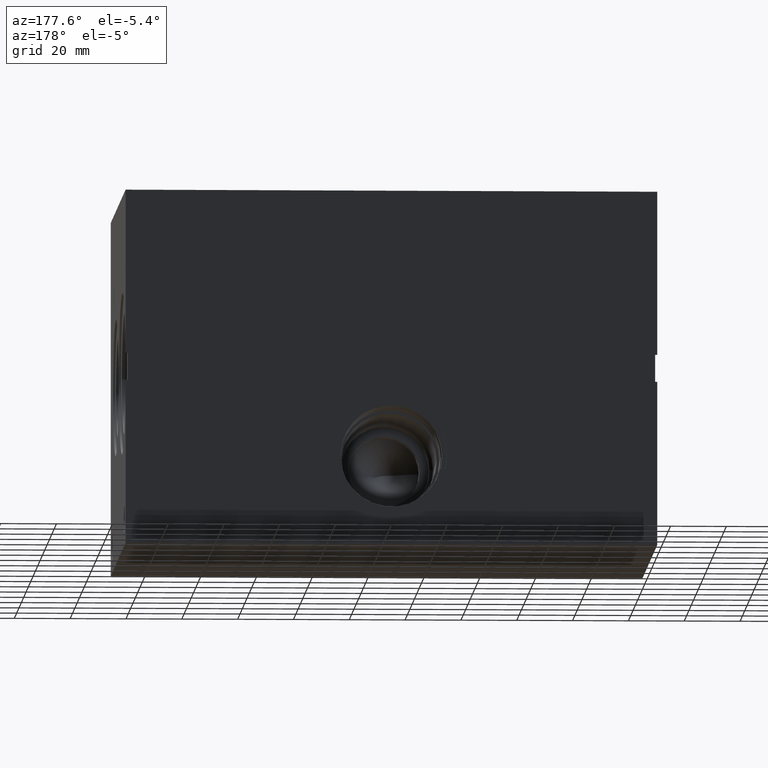
[diagram: clean part render]
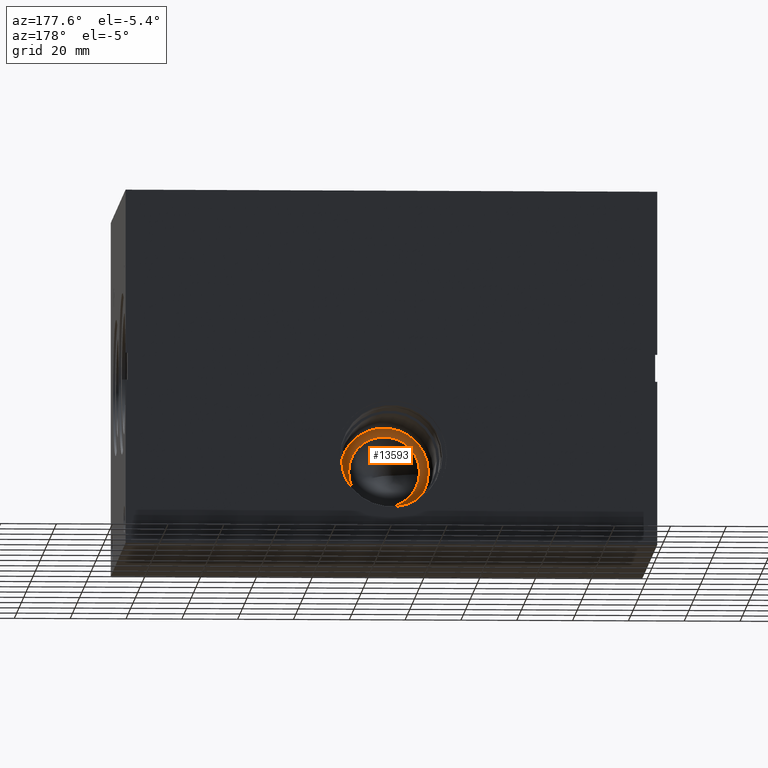
[diagram: same view with one face highlighted and labeled with its STEP entity id]
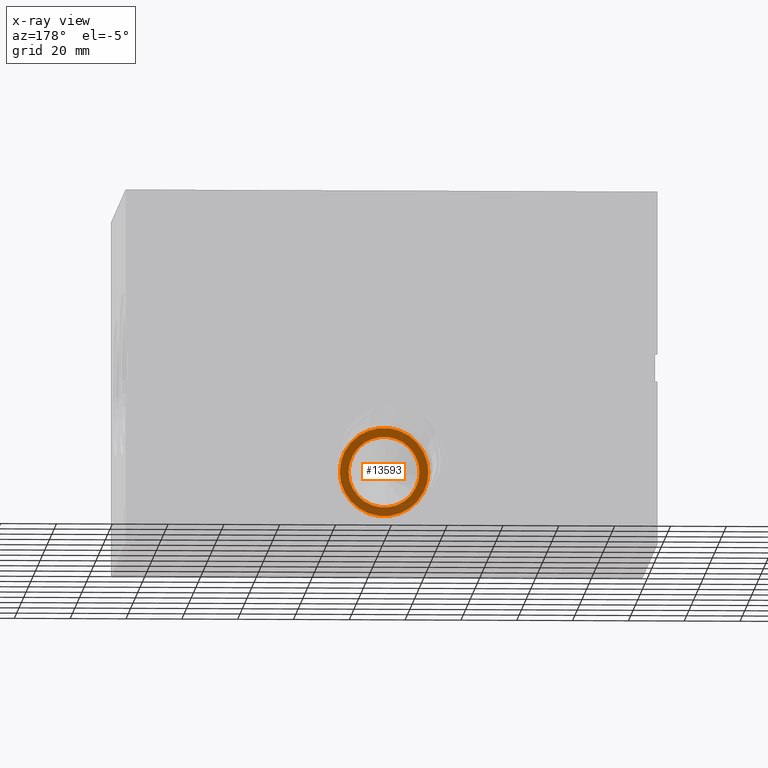
[diagram: x-ray of the same camera — body ghosted, the highlighted face saturated]
A machine part, auxiliary view. The second image highlights one B-rep face of the part: STEP entity #13593.
The next image is the same camera in x-ray: the body ghosted, the highlighted face saturated — about 35% of this face is hidden behind the body in this view.
In plain terms, the highlighted planar face has unit normal (0, -1, 0).
Its self-contained STEP definition (entity closure, byte-faithful):
#211=CIRCLE('',#14177,15.875);
#212=CIRCLE('',#14178,15.875);
#213=CIRCLE('',#14180,12.7);
#214=CIRCLE('',#14181,12.7);
#1108=FACE_BOUND('',#2462,.T.);
#1687=FACE_OUTER_BOUND('',#2461,.T.);
#2461=EDGE_LOOP('',(#11265,#11266));
#2462=EDGE_LOOP('',(#11267,#11268));
#6134=VERTEX_POINT('',#22986);
#6135=VERTEX_POINT('',#22988);
#6136=VERTEX_POINT('',#22992);
#6137=VERTEX_POINT('',#22993);
#7927=EDGE_CURVE('',#6134,#6135,#211,.T.);
#7928=EDGE_CURVE('',#6135,#6134,#212,.T.);
#7929=EDGE_CURVE('',#6136,#6137,#213,.T.);
#7930=EDGE_CURVE('',#6137,#6136,#214,.T.);
#11265=ORIENTED_EDGE('',*,*,#7928,.F.);
#11266=ORIENTED_EDGE('',*,*,#7927,.F.);
#11267=ORIENTED_EDGE('',*,*,#7929,.T.);
#11268=ORIENTED_EDGE('',*,*,#7930,.T.);
#12522=PLANE('',#14179);
#13593=ADVANCED_FACE('',(#1687,#1108),#12522,.F.);
#14177=AXIS2_PLACEMENT_3D('',#22989,#16479,#16480);
#14178=AXIS2_PLACEMENT_3D('',#22990,#16481,#16482);
#14179=AXIS2_PLACEMENT_3D('',#22991,#16483,#16484);
#14180=AXIS2_PLACEMENT_3D('',#22994,#16485,#16486);
#14181=AXIS2_PLACEMENT_3D('',#22995,#16487,#16488);
#16479=DIRECTION('center_axis',(0.,-1.,0.));
#16480=DIRECTION('ref_axis',(1.,0.,0.));
#16481=DIRECTION('center_axis',(0.,-1.,0.));
#16482=DIRECTION('ref_axis',(1.,0.,0.));
#16483=DIRECTION('center_axis',(0.,-1.,0.));
#16484=DIRECTION('ref_axis',(0.,0.,-1.));
#16485=DIRECTION('center_axis',(0.,-1.,0.));
#16486=DIRECTION('ref_axis',(1.,0.,0.));
#16487=DIRECTION('center_axis',(0.,-1.,0.));
#16488=DIRECTION('ref_axis',(1.,0.,0.));
#22986=CARTESIAN_POINT('',(79.375,63.9572,31.75));
#22988=CARTESIAN_POINT('',(111.125,63.9572,31.75));
#22989=CARTESIAN_POINT('Origin',(95.25,63.9572,31.75));
#22990=CARTESIAN_POINT('Origin',(95.25,63.9572,31.75));
#22991=CARTESIAN_POINT('Origin',(107.95,63.9572,31.75));
#22992=CARTESIAN_POINT('',(107.95,63.9572,31.75));
#22993=CARTESIAN_POINT('',(82.55,63.9572,31.75));
#22994=CARTESIAN_POINT('Origin',(95.25,63.9572,31.75));
#22995=CARTESIAN_POINT('Origin',(95.25,63.9572,31.75));